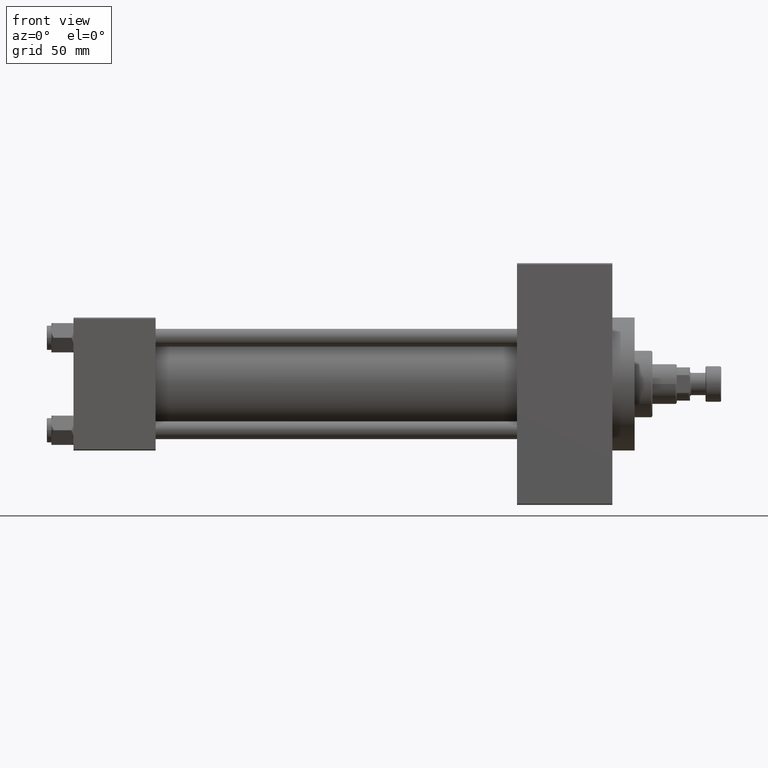
[diagram: clean part render]
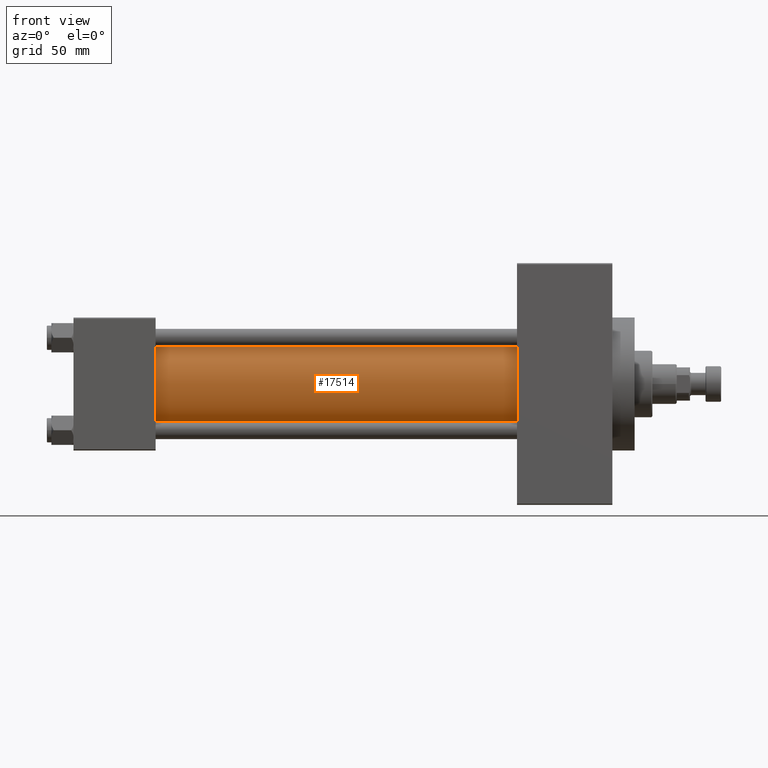
[diagram: same view with one face highlighted and labeled with its STEP entity id]
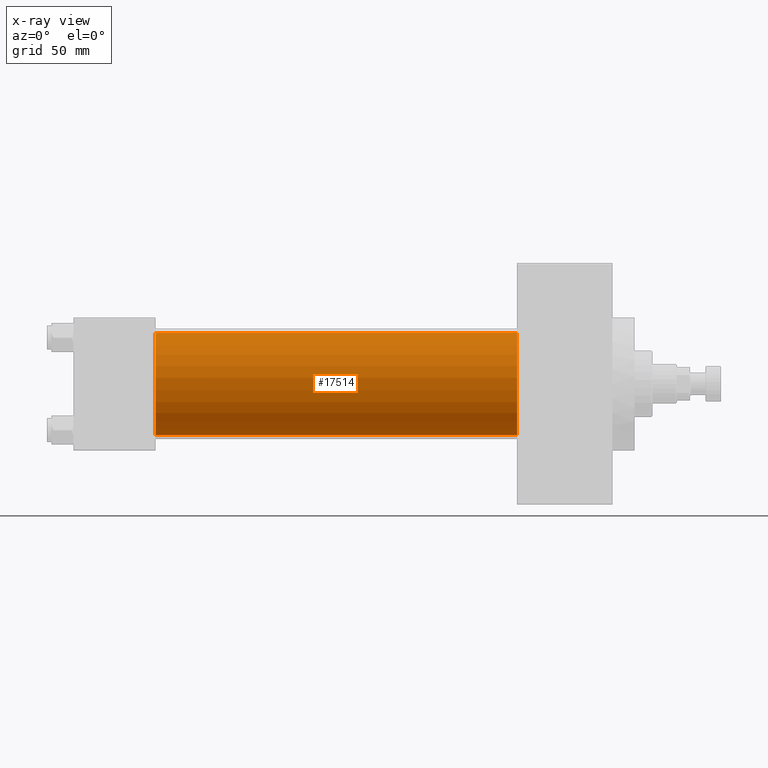
[diagram: x-ray of the same camera — body ghosted, the highlighted face saturated]
A machine part, front view. The second image highlights one B-rep face of the part: STEP entity #17514.
The next image is the same camera in x-ray: the body ghosted, the highlighted face saturated — about 0% of this face is hidden behind the body in this view.
In plain terms, the highlighted cylindrical surface (partial cylindrical patch) has radius 23 mm, axis along (-1, -0, -0).
Its self-contained STEP definition (entity closure, byte-faithful):
#639 = DIRECTION ( 'NONE',  ( -1.000000000000000000, -0.000000000000000000, -0.000000000000000000 ) ) ;
#1149 = LINE ( 'NONE', #23267, #3191 ) ;
#1875 = DIRECTION ( 'NONE',  ( 1.000000000000000000, -0.000000000000000000, 0.000000000000000000 ) ) ;
#3191 = VECTOR ( 'NONE', #639, 1000.000000000000000 ) ;
#4958 = CARTESIAN_POINT ( 'NONE',  ( 200.0000000000000000, -2.602085213965210642E-15, 23.00000000000000000 ) ) ;
#5755 = LINE ( 'NONE', #47272, #36587 ) ;
#6572 = DIRECTION ( 'NONE',  ( -1.000000000000000000, -0.000000000000000000, -0.000000000000000000 ) ) ;
#6894 = DIRECTION ( 'NONE',  ( 1.000000000000000000, 0.000000000000000000, 0.000000000000000000 ) ) ;
#7382 = CARTESIAN_POINT ( 'NONE',  ( 200.0000000000000000, -2.602085213965210642E-15, 0.000000000000000000 ) ) ;
#10571 = EDGE_LOOP ( 'NONE', ( #43548, #12035, #49560, #10992 ) ) ;
#10992 = ORIENTED_EDGE ( 'NONE', *, *, #46492, .T. ) ;
#12035 = ORIENTED_EDGE ( 'NONE', *, *, #20823, .F. ) ;
#13422 = CARTESIAN_POINT ( 'NONE',  ( 37.00000000000000711, -2.602085213965210642E-15, 0.000000000000000000 ) ) ;
#13623 = CYLINDRICAL_SURFACE ( 'NONE', #15649, 23.00000000000000000 ) ;
#15649 = AXIS2_PLACEMENT_3D ( 'NONE', #33241, #6572, #47837 ) ;
#17514 = ADVANCED_FACE ( 'NONE', ( #40794 ), #13623, .T. ) ;
#19094 = EDGE_CURVE ( 'NONE', #30136, #33509, #5755, .T. ) ;
#19452 = CARTESIAN_POINT ( 'NONE',  ( 200.0000000000000000, 2.146024240737016609E-16, -23.00000000000000000 ) ) ;
#20823 = EDGE_CURVE ( 'NONE', #30136, #20830, #22187, .T. ) ;
#20830 = VERTEX_POINT ( 'NONE', #19452 ) ;
#22187 = CIRCLE ( 'NONE', #44654, 23.00000000000000000 ) ;
#23267 = CARTESIAN_POINT ( 'NONE',  ( 200.0000000000000000, 2.146024240737016609E-16, -23.00000000000000000 ) ) ;
#23602 = CARTESIAN_POINT ( 'NONE',  ( 37.00000000000000711, -2.602085213965210642E-15, 23.00000000000000000 ) ) ;
#23838 = VERTEX_POINT ( 'NONE', #29151 ) ;
#25792 = CIRCLE ( 'NONE', #32231, 23.00000000000000000 ) ;
#29151 = CARTESIAN_POINT ( 'NONE',  ( 37.00000000000000711, 2.146024240737016609E-16, -23.00000000000000000 ) ) ;
#30136 = VERTEX_POINT ( 'NONE', #4958 ) ;
#31382 = EDGE_CURVE ( 'NONE', #20830, #23838, #1149, .T. ) ;
#32231 = AXIS2_PLACEMENT_3D ( 'NONE', #13422, #1875, #36326 ) ;
#33241 = CARTESIAN_POINT ( 'NONE',  ( 200.0000000000000000, -2.602085213965210642E-15, 0.000000000000000000 ) ) ;
#33509 = VERTEX_POINT ( 'NONE', #23602 ) ;
#36326 = DIRECTION ( 'NONE',  ( 0.000000000000000000, 0.000000000000000000, 1.000000000000000000 ) ) ;
#36587 = VECTOR ( 'NONE', #39483, 1000.000000000000000 ) ;
#39483 = DIRECTION ( 'NONE',  ( -1.000000000000000000, -0.000000000000000000, -0.000000000000000000 ) ) ;
#40794 = FACE_OUTER_BOUND ( 'NONE', #10571, .T. ) ;
#42105 = DIRECTION ( 'NONE',  ( 0.000000000000000000, 0.000000000000000000, -1.000000000000000000 ) ) ;
#43548 = ORIENTED_EDGE ( 'NONE', *, *, #31382, .F. ) ;
#44654 = AXIS2_PLACEMENT_3D ( 'NONE', #7382, #6894, #42105 ) ;
#46492 = EDGE_CURVE ( 'NONE', #33509, #23838, #25792, .T. ) ;
#47272 = CARTESIAN_POINT ( 'NONE',  ( 200.0000000000000000, -2.602085213965210642E-15, 23.00000000000000000 ) ) ;
#47837 = DIRECTION ( 'NONE',  ( 0.000000000000000000, 0.000000000000000000, 1.000000000000000000 ) ) ;
#49560 = ORIENTED_EDGE ( 'NONE', *, *, #19094, .T. ) ;